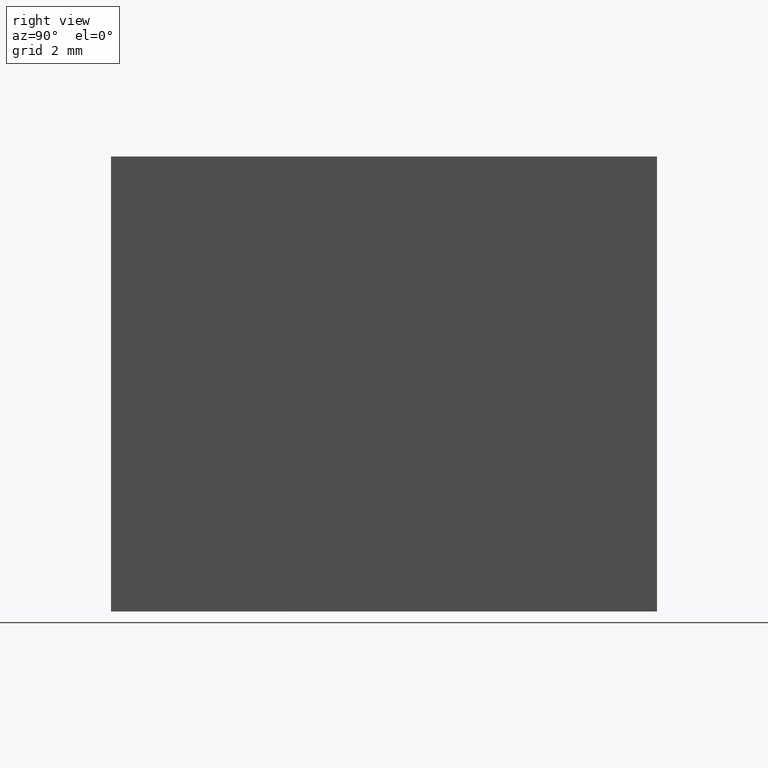
[diagram: clean part render]
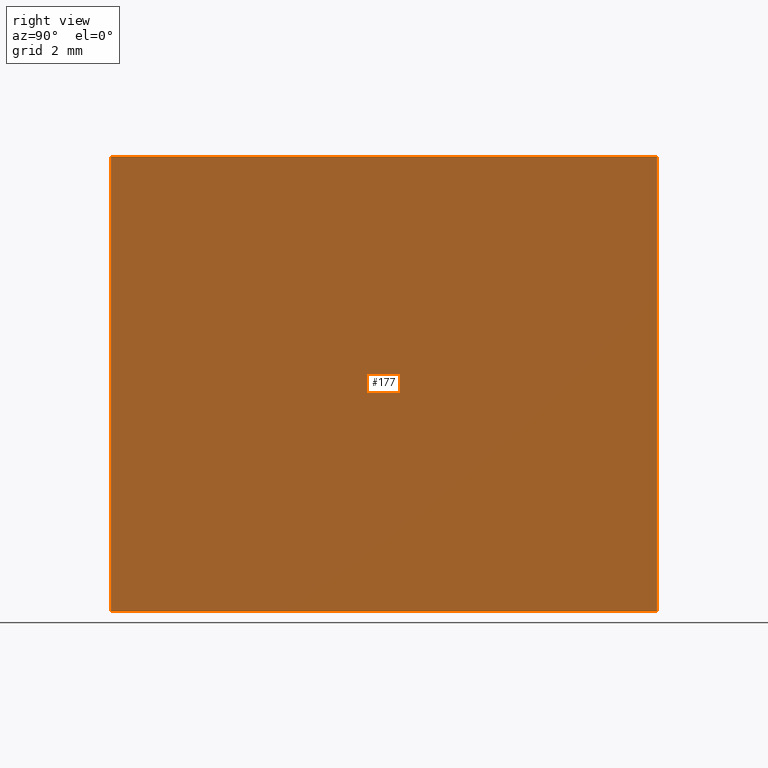
[diagram: same view with one face highlighted and labeled with its STEP entity id]
A machine part, right view. The second image highlights one B-rep face of the part: STEP entity #177.
In plain terms, the highlighted planar face has unit normal (-1, 0, 0).
Its self-contained STEP definition (entity closure, byte-faithful):
#4 = ORIENTED_EDGE ( 'NONE', *, *, #200, .F. ) ;
#19 = EDGE_LOOP ( 'NONE', ( #111, #4, #198, #130 ) ) ;
#21 = DIRECTION ( 'NONE',  ( -1.000000000000000000, 0.0000000000000000000, 3.035766082959411900E-016 ) ) ;
#22 = VERTEX_POINT ( 'NONE', #124 ) ;
#24 = LINE ( 'NONE', #114, #28 ) ;
#28 = VECTOR ( 'NONE', #165, 1000.000000000000000 ) ;
#29 = VERTEX_POINT ( 'NONE', #43 ) ;
#43 = CARTESIAN_POINT ( 'NONE',  ( 0.3952043348512662100, 12.00000000000000000, 5.000000000000000000 ) ) ;
#57 = AXIS2_PLACEMENT_3D ( 'NONE', #79, #21, #90 ) ;
#58 = LINE ( 'NONE', #192, #80 ) ;
#59 = EDGE_CURVE ( 'NONE', #29, #22, #83, .T. ) ;
#61 = DIRECTION ( 'NONE',  ( -0.0000000000000000000, -1.000000000000000000, -0.0000000000000000000 ) ) ;
#78 = LINE ( 'NONE', #169, #176 ) ;
#79 = CARTESIAN_POINT ( 'NONE',  ( 0.3952043348512631600, 12.00000000000000000, -5.000000000000001800 ) ) ;
#80 = VECTOR ( 'NONE', #172, 1000.000000000000000 ) ;
#83 = LINE ( 'NONE', #126, #179 ) ;
#90 = DIRECTION ( 'NONE',  ( 3.035766082959411900E-016, 0.0000000000000000000, 1.000000000000000000 ) ) ;
#102 = VERTEX_POINT ( 'NONE', #190 ) ;
#111 = ORIENTED_EDGE ( 'NONE', *, *, #191, .T. ) ;
#114 = CARTESIAN_POINT ( 'NONE',  ( 0.3952043348512662100, 12.00000000000000000, 5.000000000000000000 ) ) ;
#124 = CARTESIAN_POINT ( 'NONE',  ( 0.3952043348512631600, 12.00000000000000000, -5.000000000000001800 ) ) ;
#126 = CARTESIAN_POINT ( 'NONE',  ( 0.3952043348512631600, 12.00000000000000000, -5.000000000000001800 ) ) ;
#130 = ORIENTED_EDGE ( 'NONE', *, *, #160, .T. ) ;
#141 = PLANE ( 'NONE',  #57 ) ;
#145 = FACE_OUTER_BOUND ( 'NONE', #19, .T. ) ;
#157 = DIRECTION ( 'NONE',  ( -3.035766082959411900E-016, -0.0000000000000000000, -1.000000000000000000 ) ) ;
#160 = EDGE_CURVE ( 'NONE', #29, #102, #24, .T. ) ;
#165 = DIRECTION ( 'NONE',  ( -0.0000000000000000000, -1.000000000000000000, -0.0000000000000000000 ) ) ;
#169 = CARTESIAN_POINT ( 'NONE',  ( 0.3952043348512631600, 12.00000000000000000, -5.000000000000001800 ) ) ;
#172 = DIRECTION ( 'NONE',  ( -3.035766082959411900E-016, -0.0000000000000000000, -1.000000000000000000 ) ) ;
#176 = VECTOR ( 'NONE', #61, 1000.000000000000000 ) ;
#177 = ADVANCED_FACE ( 'NONE', ( #145 ), #141, .F. ) ;
#179 = VECTOR ( 'NONE', #157, 1000.000000000000000 ) ;
#182 = VERTEX_POINT ( 'NONE', #183 ) ;
#183 = CARTESIAN_POINT ( 'NONE',  ( 0.3952043348512631600, 0.0000000000000000000, -5.000000000000001800 ) ) ;
#190 = CARTESIAN_POINT ( 'NONE',  ( 0.3952043348512662100, 0.0000000000000000000, 5.000000000000000000 ) ) ;
#191 = EDGE_CURVE ( 'NONE', #102, #182, #58, .T. ) ;
#192 = CARTESIAN_POINT ( 'NONE',  ( 0.3952043348512631600, 0.0000000000000000000, -5.000000000000001800 ) ) ;
#198 = ORIENTED_EDGE ( 'NONE', *, *, #59, .F. ) ;
#200 = EDGE_CURVE ( 'NONE', #22, #182, #78, .T. ) ;